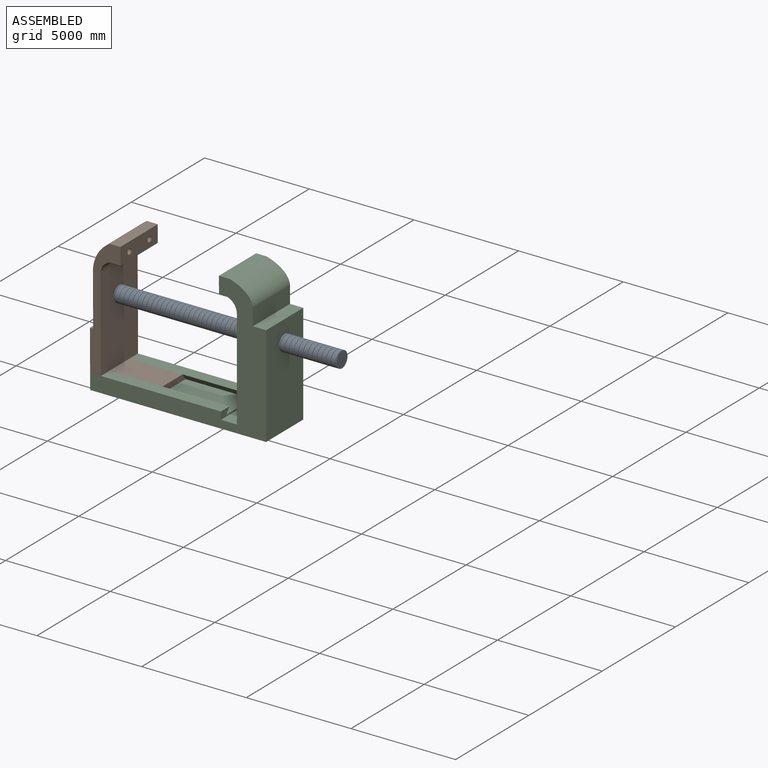
[diagram: assembled view]
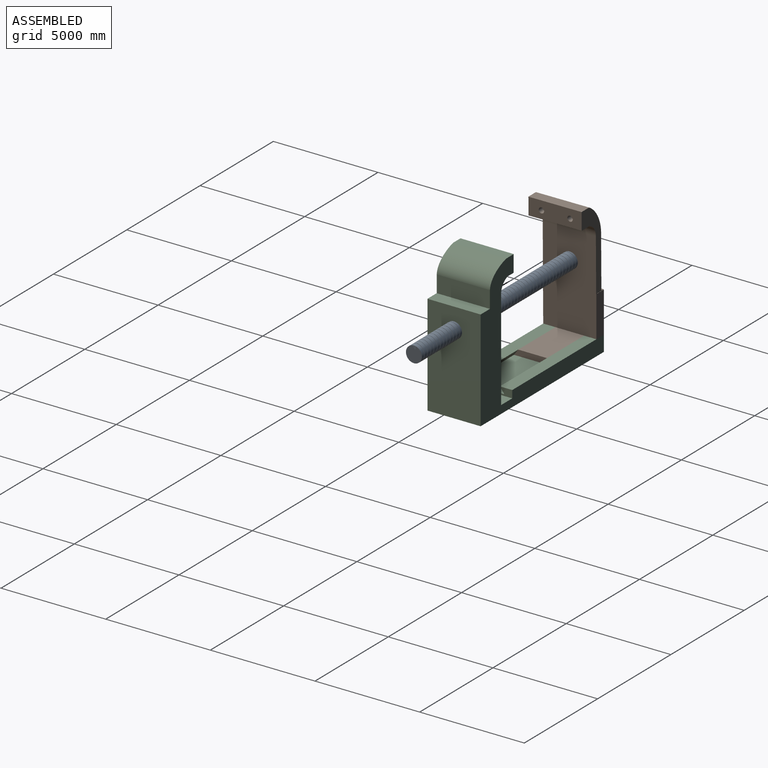
[diagram: assembled view, second angle]
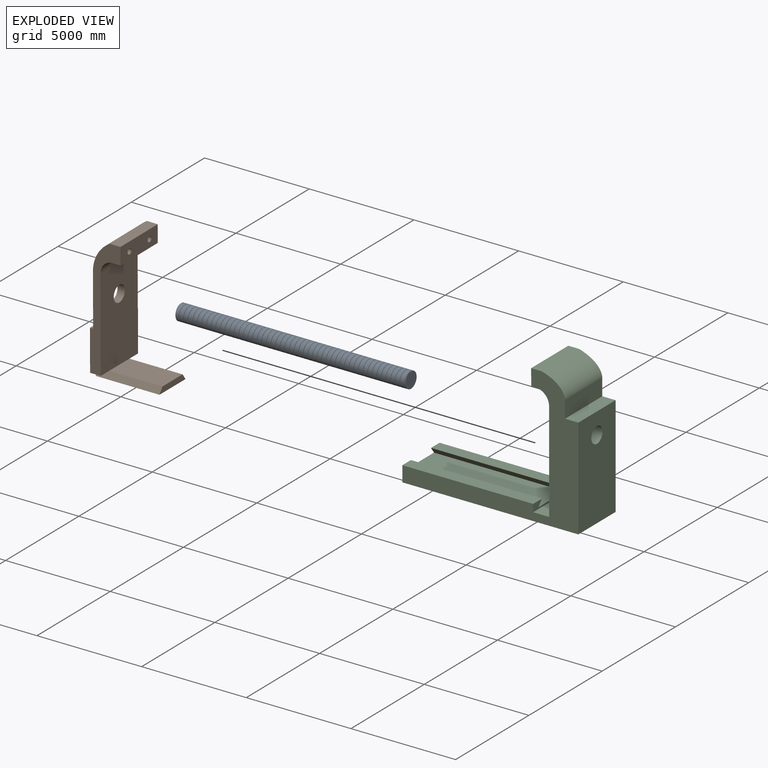
[diagram: exploded view]
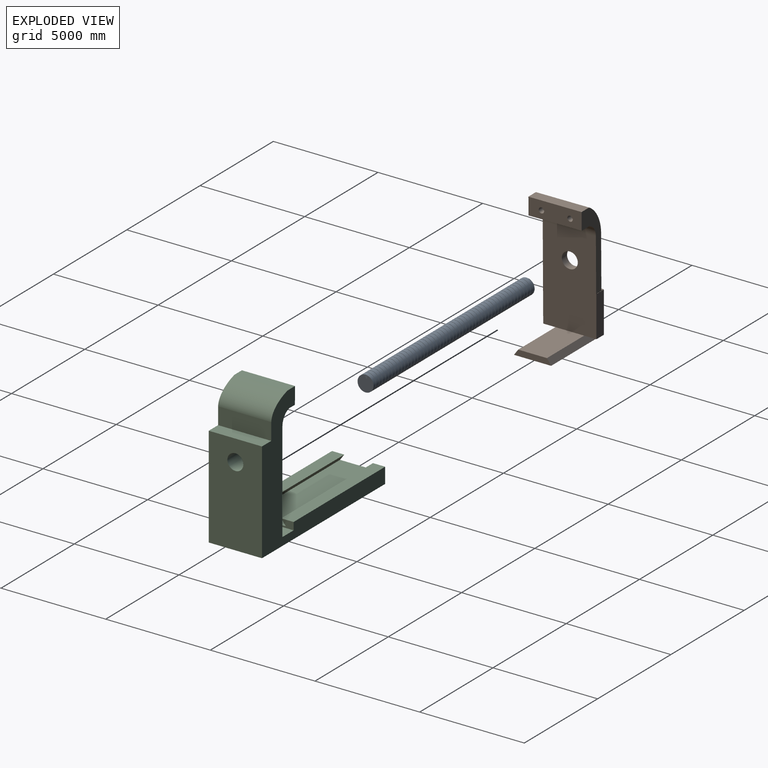
[diagram: exploded view, second angle]
ASSEMBLY  parts=3 mates=2
PART A: 5 faces, bbox 10990.9x769x769 mm
  f0: cylinder r=381mm len=10990.93mm, axis (-1,0,0), area 24170222.5mm2, adj f1,f2,f3,f4
  f1: plane 762x762mm, normal (1,0,0), area 439367.4mm2, adj f0,f3,f4
  f2: plane 762x762mm, normal (-1,0,0), area 439367.4mm2, adj f0,f3,f4
  f3: bspline ~10990.93x769mm, area 15213593.2mm2, adj f0,f1,f2,f4
  f4: bspline ~10990.93x765.78mm, area 15314206.7mm2, adj f0,f1,f2,f3
PART B: 26 faces, bbox 3048x2571.4x6135.3 mm
  f0: plane 2544.31x821.84mm, normal (1,0,0), area 1947372.4mm2, adj f3,f13,f18,f19,f21,f23
  f1: plane 508x10.45mm, normal (0,0,1), area 5309mm2, adj f4,f10,f12,f13
  f2: plane 584.2x508mm, normal (0,0,-1), area 296773.6mm2, adj f3,f6,f10,f12
  f3: plane 5841.92x1472.3mm, normal (0,-1,-0.01), area 2893663.8mm2, adj f0,f2,f10,f12,f14,f15,f16,f17
  f4: plane 1950.42x508mm, normal (0,1,0), area 990815.3mm2, adj f1,f7,f10,f12
  f5: plane 1778x279.68mm, normal (1,0,0), area 440441.3mm2, adj f6,f8,f9,f11
  f6: plane 3048x279.68mm, normal (0,-0.81,0.59), area 1053707.3mm2, adj f2,f5,f9,f10,f11
  f7: plane 584.2x508mm, normal (0,0,-1), area 296773.6mm2, adj f4,f8,f10,f12
  f8: plane 3048x279.68mm, normal (0,0.81,0.59), area 1053707.3mm2, adj f5,f7,f9,f10,f11
  f9: plane 3048x1778mm, normal (0,0,-1), area 5419344mm2, adj f5,f6,f8,f10
  f10: plane 2550.49x2243.76mm, normal (-1,0,0), area 5422090.6mm2, adj f1,f2,f3,f4,f6,f7,f8,f9
  f11: plane 2540x1371.6mm, normal (0,0,1), area 3483864mm2, adj f5,f6,f8,f12
  f12: plane 2550.49x1964.08mm, normal (1,0,0), area 4981649.3mm2, adj f1,f2,f3,f4,f7,f11,f13,f16
  f13: plane 3905.15x1472.3mm, normal (0,1,0.01), area 1909772.3mm2, adj f0,f1,f10,f12,f14,f15,f16,f17
  f14: plane 2553.24x2483.29mm, normal (-1,0,0), area 5816929.4mm2, adj f3,f13,f15,f20,f25
  f15: plane 2539.96x152.4mm, normal (0,-0.01,1), area 387095.9mm2, adj f3,f10,f13,f14
  f16: plane 2553.24x2483.29mm, normal (1,0,0), area 5816929.3mm2, adj f3,f12,f13,f17,f25
  f17: cylinder r=635mm len=2543.24mm, axis (0,-1,-0.01), area 2073439.1mm2, adj f3,f13,f16,f18
  f18: plane 2539.96x508mm, normal (0,0.01,-1), area 1290320mm2, adj f0,f3,f13,f17
  f19: plane 2539.99x508mm, normal (0.01,-0.01,1), area 1290367.2mm2, adj f0,f3,f13,f20
  f20: cylinder r=1651mm len=2547.61mm, axis (0,-1,-0.01), area 4351489.8mm2, adj f3,f13,f14,f19
  f21: cylinder r=129.54mm len=259.08mm, axis (1,0,0), area 206736.7mm2, adj f0,f22
  f22: plane 259.08x259.08mm, normal (1,0,0), area 52717.8mm2, adj f21
  f23: cylinder r=129.54mm len=259.08mm, axis (1,0,0), area 206736.7mm2, adj f0,f24
  f24: plane 259.08x259.08mm, normal (1,0,0), area 52717.8mm2, adj f23
  f25: cylinder r=381mm len=762mm, axis (-1,0,0), area 851268.7mm2, adj f14,f16
PART C: 32 faces, bbox 8407.4x2540x6574.9 mm
  f0: plane 2540x359.16mm, normal (1,0,0), area 471826.7mm2, adj f2,f3,f6,f11,f12,f13,f14,f15
  f1: plane 2540x740.16mm, normal (-1,0,0), area 1369078mm2, adj f2,f3,f4,f7,f9,f11,f12,f13
  f2: plane 8407.41x6574.86mm, normal (0,1,0), area 13441966.4mm2, adj f0,f1,f4,f5,f6,f12,f16,f17
  f3: plane 8407.41x6574.86mm, normal (0,-1,0), area 13441966.4mm2, adj f0,f1,f4,f5,f6,f11,f16,f17
  f4: plane 8407.4x2540mm, normal (0,0,-1), area 21354796mm2, adj f1,f2,f3,f16
  f5: plane 4778.77x2540mm, normal (-1,0,0), area 11682015.3mm2, adj f2,f3,f6,f24,f25
  f6: plane 2540x762mm, normal (0,0,1), area 1935480mm2, adj f0,f2,f3,f5
  f7: cylinder r=105.92mm len=622.3mm, axis (-1,0,0), area 414142.2mm2, adj f1,f8
  f8: plane 211.84x211.84mm, normal (-1,0,0), area 35244.3mm2, adj f7
  f9: cylinder r=105.92mm len=622.3mm, axis (-1,0,0), area 414142.2mm2, adj f1,f10
  f10: plane 211.84x211.84mm, normal (-1,0,0), area 35244.3mm2, adj f9
  f11: plane 6248.4x584.2mm, normal (0,0,1), area 3650315.3mm2, adj f0,f1,f3,f15
  f12: plane 6248.4x584.2mm, normal (0,0,1), area 3650315.3mm2, adj f0,f1,f2,f13
  f13: plane 6248.4x279.68mm, normal (0,-0.81,-0.59), area 2160099.9mm2, adj f0,f1,f12,f14
  f14: plane 6248.4x1778mm, normal (0,0,1), area 11109655.2mm2, adj f0,f1,f13,f15
  f15: plane 6248.4x279.68mm, normal (0,0.81,-0.59), area 2160099.9mm2, adj f0,f1,f11,f14
  f16: plane 2540x2029.74mm, normal (1,0,0), area 5155527mm2, adj f2,f3,f4,f17
  f17: plane 2796.27x2540.01mm, normal (1,0,0), area 6646476.2mm2, adj f2,f3,f16,f18,f25
  f18: plane 2540x634.47mm, normal (0,0,1), area 1611561.9mm2, adj f2,f3,f17,f19
  f19: plane 2540x812.8mm, normal (1,0,0), area 2064512mm2, adj f2,f3,f18,f20
  f20: extruded ~2540x1114.1mm, area 3916130.2mm2, adj f2,f3,f19,f21
  f21: plane 2540x508mm, normal (0,0,1), area 1290320mm2, adj f2,f3,f20,f22
  f22: plane 2540x808.13mm, normal (-1,0,-0.01), area 2052770.1mm2, adj f2,f3,f21,f23
  f23: plane 2540x394.78mm, normal (0.01,0,-1), area 1002768.6mm2, adj f2,f3,f22,f24
  f24: cylinder r=635mm len=2540mm, axis (0,-1,0), area 2073432.8mm2, adj f2,f3,f5,f23
  f25: cylinder r=381mm len=1397.01mm, axis (-1,0,0), area 3344279mm2, adj f5,f17
  f26: plane 259.08x259.08mm, normal (0,0,-1), area 52717.8mm2, adj f28
  f27: plane 259.08x259.08mm, normal (0,0,1), area 52717.8mm2, adj f28
  f28: cylinder r=129.54mm len=768.35mm, axis (0,0,1), area 625378.4mm2, adj f26,f27
  f29: plane 259.08x259.08mm, normal (0,0,1), area 52717.8mm2, adj f30
  f30: cylinder r=129.54mm len=768.35mm, axis (0,0,1), area 625378.4mm2, adj f29,f31
  f31: plane 259.08x259.08mm, normal (0,0,-1), area 52717.8mm2, adj f30
PLACE A rot(axis=(-1,0,0),73.7deg) t=(-2343.24,-2904.6,3459.5)mm
PLACE B t=(-2343.23,752.7,717.34)mm
PLACE C t=(-2343.23,752.7,717.34)mm fixed
MATE slider B.f10 <-> C.f1  axis (-1,0,0) through (-6102.43,1641.7,1177.82)mm
MATE revolute A.f0 <-> B.f25  axis (-1,0,0) through (-5950.03,752.7,4527.34)mm
